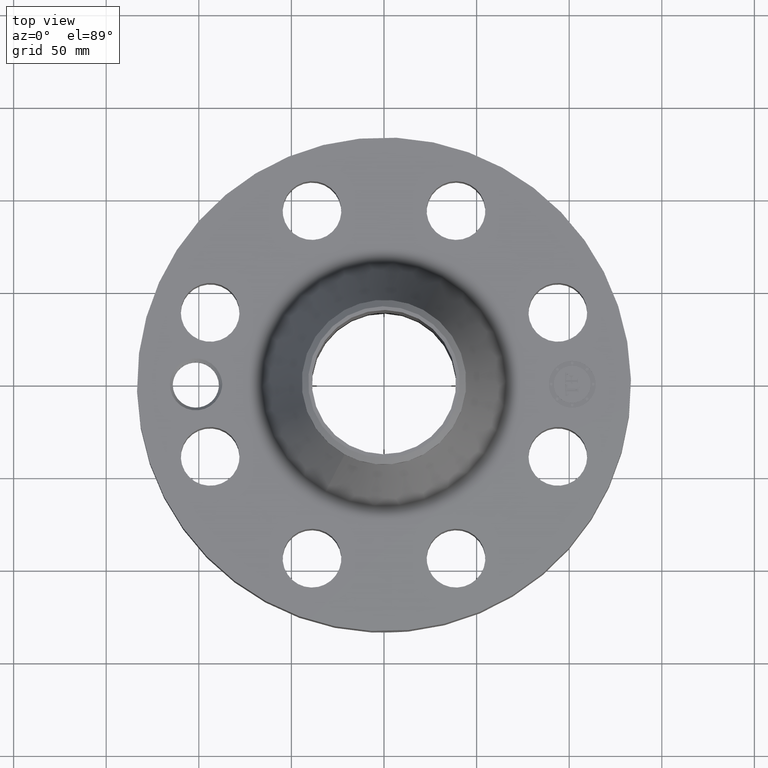
[diagram: clean part render]
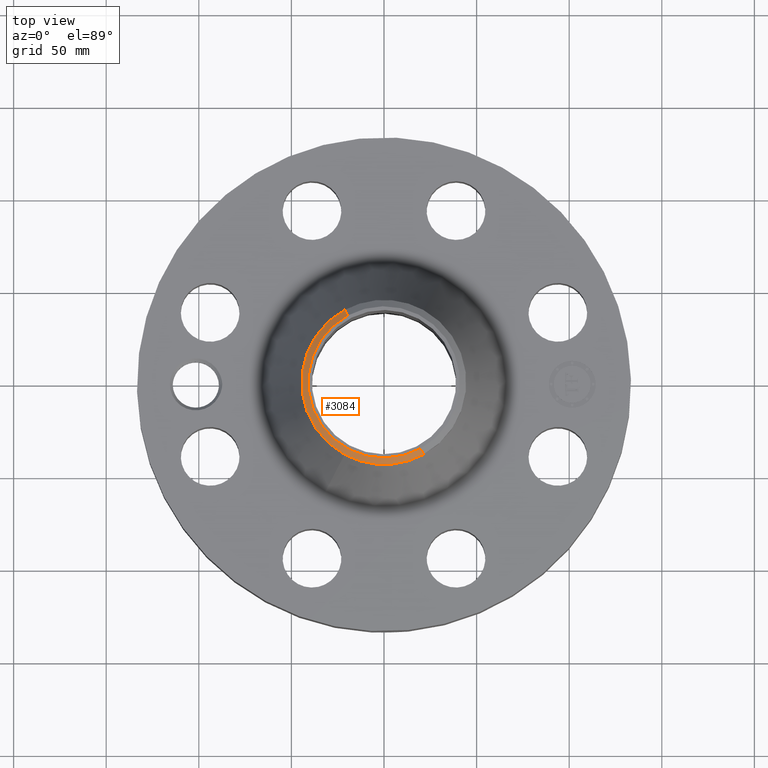
[diagram: same view with one face highlighted and labeled with its STEP entity id]
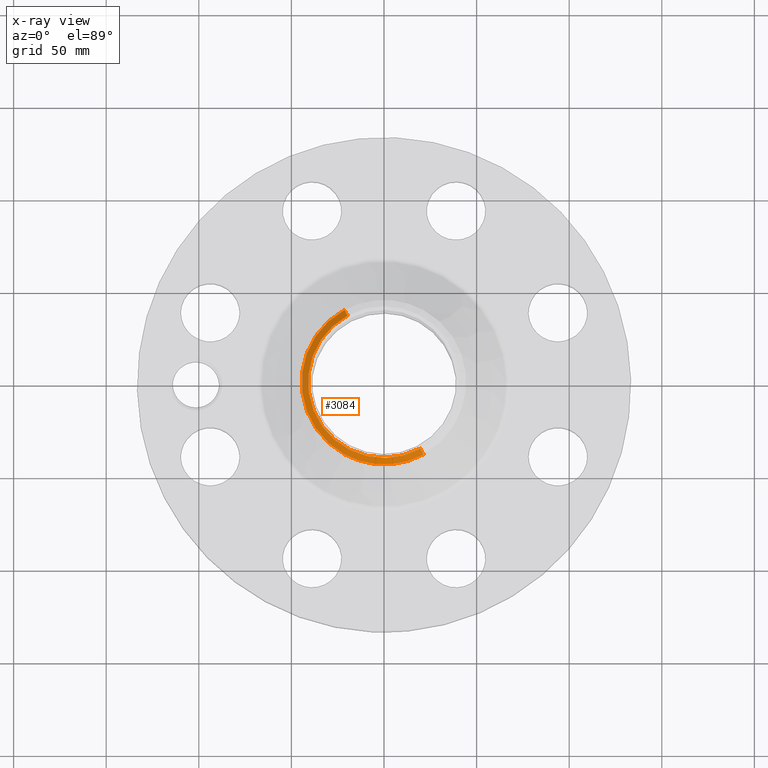
[diagram: x-ray of the same camera — body ghosted, the highlighted face saturated]
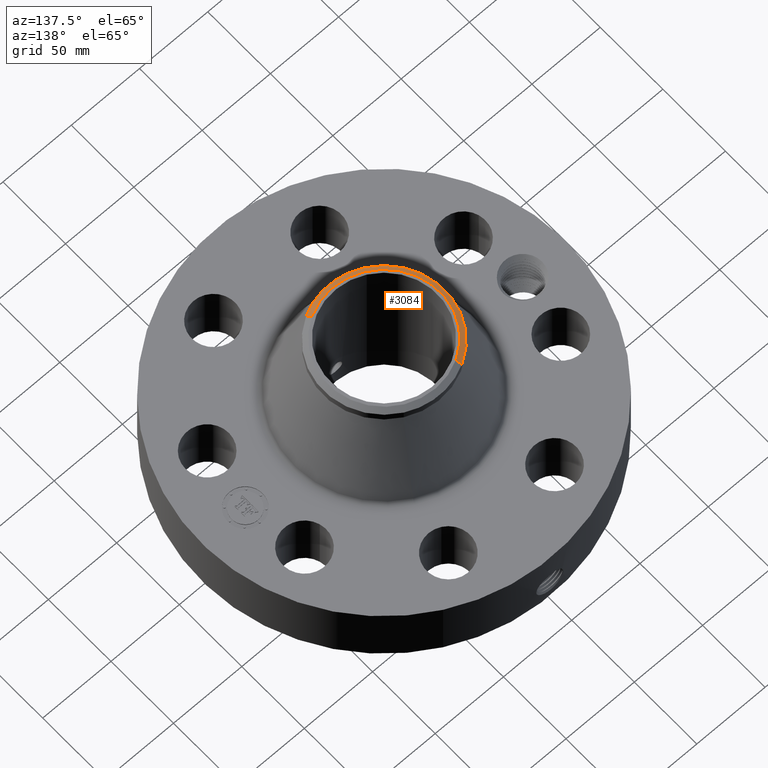
[diagram: same view with one face highlighted and labeled with its STEP entity id]
A machine part, top view. The second image highlights one B-rep face of the part: STEP entity #3084.
The next image is the same camera in x-ray: the body ghosted, the highlighted face saturated — about 0% of this face is hidden behind the body in this view.
A second angle (auxiliary view) of the same face is appended — the face is thin or edge-on in the first view.
In plain terms, the highlighted conical surface has half-angle 52.5 deg.
Its self-contained STEP definition (entity closure, byte-faithful):
#2250=AXIS2_PLACEMENT_3D('Circle Axis2P3D',#2248,#2249,$) ;
#3049=AXIS2_PLACEMENT_3D('Cone Axis2P3D',#3046,#3047,#3048) ;
#3067=AXIS2_PLACEMENT_3D('Circle Axis2P3D',#3065,#3066,$) ;
#3074=AXIS2_PLACEMENT_3D('Circle Axis2P3D',#3072,#3073,$) ;
#2243=CARTESIAN_POINT('Vertex',(0.773188818632,-1.41531263907,4.87000000002)) ;
#2245=CARTESIAN_POINT('Vertex',(-0.773188818632,1.41531263907,4.87000000002)) ;
#2248=CARTESIAN_POINT('Axis2P3D Location',(0.,0.,4.87000000002)) ;
#3046=CARTESIAN_POINT('Axis2P3D Location',(0.,0.,4.87000000002)) ;
#3051=CARTESIAN_POINT('Line Origine',(0.806091755596,-1.47554106119,4.81733840925)) ;
#3055=CARTESIAN_POINT('Vertex',(0.838994692561,-1.53576948331,4.76467681849)) ;
#3058=CARTESIAN_POINT('Line Origine',(-0.806091755596,1.47554106119,4.81733840925)) ;
#3062=CARTESIAN_POINT('Vertex',(-0.838994692561,1.53576948331,4.76467681849)) ;
#3065=CARTESIAN_POINT('Axis2P3D Location',(0.,0.,4.76467681849)) ;
#3069=CARTESIAN_POINT('Vertex',(-0.838994692561,-1.53576948331,4.76467681849)) ;
#3072=CARTESIAN_POINT('Axis2P3D Location',(0.,0.,4.76467681849)) ;
#2249=DIRECTION('Axis2P3D Direction',(0.,0.,-0.0393700787402)) ;
#3047=DIRECTION('Axis2P3D Direction',(-0.,-0.,-0.0393700787402)) ;
#3048=DIRECTION('Axis2P3D XDirection',(-0.0188750212049,0.0345504945626,0.)) ;
#3052=DIRECTION('Vector Direction',(0.014974561121,-0.02741075027,-0.023966985394)) ;
#3059=DIRECTION('Vector Direction',(-0.014974561121,0.02741075027,-0.023966985394)) ;
#3066=DIRECTION('Axis2P3D Direction',(0.,0.,-0.0393700787402)) ;
#3073=DIRECTION('Axis2P3D Direction',(0.,0.,-0.0393700787402)) ;
#3053=VECTOR('Line Direction',#3052,0.0393700787402) ;
#3060=VECTOR('Line Direction',#3059,0.0393700787402) ;
#3078=ORIENTED_EDGE('',*,*,#3057,.F.) ;
#3079=ORIENTED_EDGE('',*,*,#2252,.F.) ;
#3080=ORIENTED_EDGE('',*,*,#3064,.T.) ;
#3081=ORIENTED_EDGE('',*,*,#3071,.T.) ;
#3082=ORIENTED_EDGE('',*,*,#3076,.F.) ;
#3084=ADVANCED_FACE('PartBody',(#3083),#3050,.T.) ;
#2251=CIRCLE('generated circle',#2250,1.61274015749) ;
#3068=CIRCLE('generated circle',#3067,1.75000000001) ;
#3075=CIRCLE('generated circle',#3074,1.75000000001) ;
#3050=CONICAL_SURFACE('Cone',#3049,1.61274015749,0.916297857297) ;
#2252=EDGE_CURVE('',#2246,#2244,#2251,.F.) ;
#3057=EDGE_CURVE('',#2244,#3056,#3054,.T.) ;
#3064=EDGE_CURVE('',#2246,#3063,#3061,.T.) ;
#3071=EDGE_CURVE('',#3063,#3070,#3068,.F.) ;
#3076=EDGE_CURVE('',#3056,#3070,#3075,.T.) ;
#3077=EDGE_LOOP('',(#3078,#3079,#3080,#3081,#3082)) ;
#3083=FACE_OUTER_BOUND('',#3077,.T.) ;
#3054=LINE('Line',#3051,#3053) ;
#3061=LINE('Line',#3058,#3060) ;
#2244=VERTEX_POINT('',#2243) ;
#2246=VERTEX_POINT('',#2245) ;
#3056=VERTEX_POINT('',#3055) ;
#3063=VERTEX_POINT('',#3062) ;
#3070=VERTEX_POINT('',#3069) ;